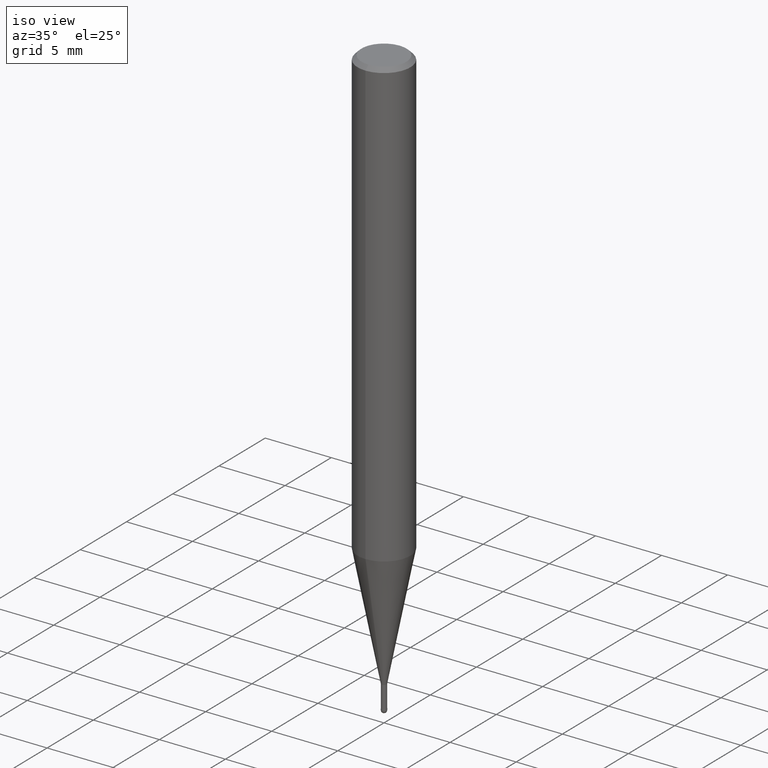
[diagram: clean part render]
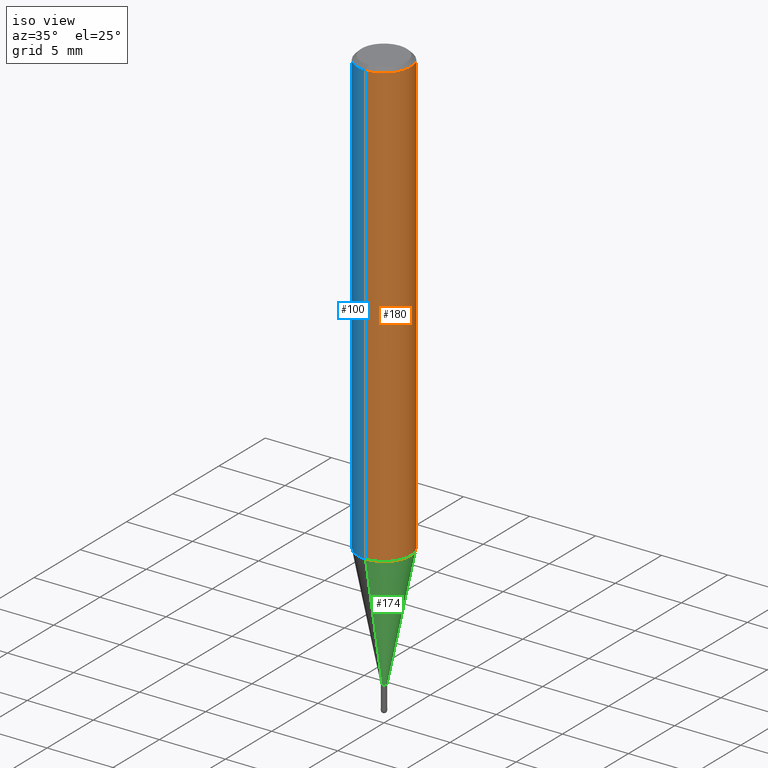
[diagram: same view with three faces highlighted in distinct colors, each labeled with its STEP entity id]
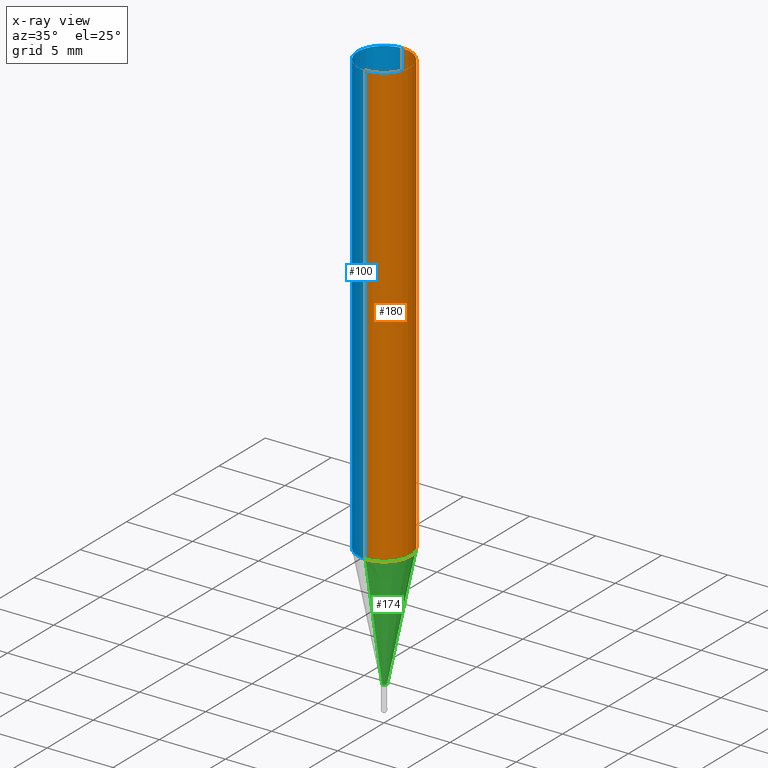
[diagram: x-ray of the same camera — body ghosted, the three highlighted faces saturated]
A machine part, iso view with three faces highlighted in distinct colors.
The next image is the same camera in x-ray (body ghosted, the three faces saturated) — at least one of them is partly hidden behind the body in this view.
Their STEP definitions:

[orange] entity #180 — the highlighted cylindrical surface (edge-blend (fillet) strip) has radius 2 mm, axis along (-0, -0, 1).
#98=VERTEX_POINT('',#239);
#134=VERTEX_POINT('',#279);
#158=EDGE_CURVE('',#98,#134,#306,.T.);
#168=EDGE_CURVE('',#98,#202,#317,.T.);
#180=ADVANCED_FACE('',(#331),#332,.T.);
#202=VERTEX_POINT('',#357);
#204=VERTEX_POINT('',#359);
#206=EDGE_CURVE('',#202,#204,#361,.T.);
#210=EDGE_CURVE('',#204,#134,#366,.T.);
#239=CARTESIAN_POINT('',(0.0,2.0,-0.299999999999997));
#279=CARTESIAN_POINT('',(2.44921270764475E-016,-2.0,-0.299999999999997));
#306=CIRCLE('',#474,2.0);
#317=LINE('',#487,#488);
#331=FACE_OUTER_BOUND('',#506,.T.);
#332=CYLINDRICAL_SURFACE('',#507,2.0);
#357=CARTESIAN_POINT('',(0.0,2.0,-33.714));
#359=CARTESIAN_POINT('',(2.44921270764475E-016,-2.0,-33.714));
#361=CIRCLE('',#543,2.0);
#366=LINE('',#549,#550);
#474=AXIS2_PLACEMENT_3D('',#651,#652,#653);
#487=CARTESIAN_POINT('',(-2.44921270764475E-016,2.0,-17.007));
#488=VECTOR('',#664,1.0);
#506=EDGE_LOOP('',(#682,#683,#684,#685));
#507=AXIS2_PLACEMENT_3D('',#686,#687,#688);
#543=AXIS2_PLACEMENT_3D('',#719,#720,#721);
#549=CARTESIAN_POINT('',(2.44921270764475E-016,-2.0,-17.007));
#550=VECTOR('',#728,1.0);
#651=CARTESIAN_POINT('',(0.0,0.0,-0.299999999999997));
#652=DIRECTION('',(0.0,0.0,-1.0));
#653=DIRECTION('',(0.0,1.0,0.0));
#664=DIRECTION('',(0.0,0.0,-1.0));
#682=ORIENTED_EDGE('',*,*,#168,.F.);
#683=ORIENTED_EDGE('',*,*,#158,.T.);
#684=ORIENTED_EDGE('',*,*,#210,.F.);
#685=ORIENTED_EDGE('',*,*,#206,.F.);
#686=CARTESIAN_POINT('',(0.0,0.0,-17.007));
#687=DIRECTION('',(-0.0,-0.0,1.0));
#688=DIRECTION('',(0.0,1.0,0.0));
#719=CARTESIAN_POINT('',(0.0,0.0,-33.714));
#720=DIRECTION('',(0.0,0.0,-1.0));
#721=DIRECTION('',(0.0,1.0,0.0));
#728=DIRECTION('',(-0.0,-0.0,1.0));

[blue] entity #100 — the highlighted cylindrical surface (edge-blend (fillet) strip) has radius 2 mm, axis along (-0, -0, 1).
#98=VERTEX_POINT('',#239);
#100=ADVANCED_FACE('',(#241),#242,.T.);
#132=EDGE_CURVE('',#204,#202,#277,.T.);
#134=VERTEX_POINT('',#279);
#154=EDGE_CURVE('',#134,#98,#301,.T.);
#168=EDGE_CURVE('',#98,#202,#317,.T.);
#202=VERTEX_POINT('',#357);
#204=VERTEX_POINT('',#359);
#210=EDGE_CURVE('',#204,#134,#366,.T.);
#239=CARTESIAN_POINT('',(0.0,2.0,-0.299999999999997));
#241=FACE_OUTER_BOUND('',#394,.T.);
#242=CYLINDRICAL_SURFACE('',#395,2.0);
#277=CIRCLE('',#439,2.0);
#279=CARTESIAN_POINT('',(2.44921270764475E-016,-2.0,-0.299999999999997));
#301=CIRCLE('',#468,2.0);
#317=LINE('',#487,#488);
#357=CARTESIAN_POINT('',(0.0,2.0,-33.714));
#359=CARTESIAN_POINT('',(2.44921270764475E-016,-2.0,-33.714));
#366=LINE('',#549,#550);
#394=EDGE_LOOP('',(#564,#565,#566,#567));
#395=AXIS2_PLACEMENT_3D('',#568,#569,#570);
#439=AXIS2_PLACEMENT_3D('',#614,#615,#616);
#468=AXIS2_PLACEMENT_3D('',#640,#641,#642);
#487=CARTESIAN_POINT('',(-2.44921270764475E-016,2.0,-17.007));
#488=VECTOR('',#664,1.0);
#549=CARTESIAN_POINT('',(2.44921270764475E-016,-2.0,-17.007));
#550=VECTOR('',#728,1.0);
#564=ORIENTED_EDGE('',*,*,#168,.T.);
#565=ORIENTED_EDGE('',*,*,#132,.F.);
#566=ORIENTED_EDGE('',*,*,#210,.T.);
#567=ORIENTED_EDGE('',*,*,#154,.T.);
#568=CARTESIAN_POINT('',(0.0,0.0,-17.007));
#569=DIRECTION('',(-0.0,-0.0,1.0));
#570=DIRECTION('',(0.0,1.0,0.0));
#614=CARTESIAN_POINT('',(0.0,0.0,-33.714));
#615=DIRECTION('',(0.0,0.0,-1.0));
#616=DIRECTION('',(0.0,1.0,0.0));
#640=CARTESIAN_POINT('',(0.0,0.0,-0.299999999999997));
#641=DIRECTION('',(0.0,0.0,-1.0));
#642=DIRECTION('',(0.0,1.0,0.0));
#664=DIRECTION('',(0.0,0.0,-1.0));
#728=DIRECTION('',(-0.0,-0.0,1.0));

[green] entity #174 — the highlighted conical surface has half-angle 11 deg.
#108=VERTEX_POINT('',#251);
#110=VERTEX_POINT('',#253);
#122=EDGE_CURVE('',#108,#194,#265,.T.);
#128=EDGE_CURVE('',#190,#110,#273,.T.);
#166=EDGE_CURVE('',#194,#110,#315,.T.);
#170=EDGE_CURVE('',#190,#108,#319,.T.);
#174=ADVANCED_FACE('',(#324),#325,.T.);
#190=VERTEX_POINT('',#343);
#194=VERTEX_POINT('',#348);
#251=CARTESIAN_POINT('',(0.0,0.19495,-43.0));
#253=CARTESIAN_POINT('',(2.44915147732706E-016,-1.99995,-33.714));
#265=CIRCLE('',#424,0.19495);
#273=CIRCLE('',#433,1.99995);
#315=LINE('',#483,#484);
#319=LINE('',#491,#492);
#324=FACE_OUTER_BOUND('',#497,.T.);
#325=CONICAL_SURFACE('',#498,1.09745,0.191984604054908);
#343=CARTESIAN_POINT('',(0.0,1.99995,-33.714));
#348=CARTESIAN_POINT('',(2.38737008677672E-017,-0.19495,-43.0));
#424=AXIS2_PLACEMENT_3D('',#589,#590,#591);
#433=AXIS2_PLACEMENT_3D('',#608,#609,#610);
#483=CARTESIAN_POINT('',(1.34394424300237E-016,-1.09745,-38.357));
#484=VECTOR('',#663,1.0);
#491=CARTESIAN_POINT('',(-1.34394424300237E-016,1.09745,-38.357));
#492=VECTOR('',#665,1.0);
#497=EDGE_LOOP('',(#673,#674,#675,#676));
#498=AXIS2_PLACEMENT_3D('',#677,#678,#679);
#589=CARTESIAN_POINT('',(0.0,0.0,-43.0));
#590=DIRECTION('',(0.0,0.0,-1.0));
#591=DIRECTION('',(0.0,1.0,0.0));
#608=CARTESIAN_POINT('',(0.0,0.0,-33.714));
#609=DIRECTION('',(0.0,0.0,-1.0));
#610=DIRECTION('',(0.0,1.0,0.0));
#663=DIRECTION('',(2.33663968307108E-017,-0.190807411359389,0.981627491348082));
#665=DIRECTION('',(2.33663968307108E-017,-0.190807411359389,-0.981627491348082));
#673=ORIENTED_EDGE('',*,*,#170,.F.);
#674=ORIENTED_EDGE('',*,*,#128,.T.);
#675=ORIENTED_EDGE('',*,*,#166,.F.);
#676=ORIENTED_EDGE('',*,*,#122,.F.);
#677=CARTESIAN_POINT('',(0.0,0.0,-38.357));
#678=DIRECTION('',(-0.0,-0.0,1.0));
#679=DIRECTION('',(0.0,1.0,0.0));